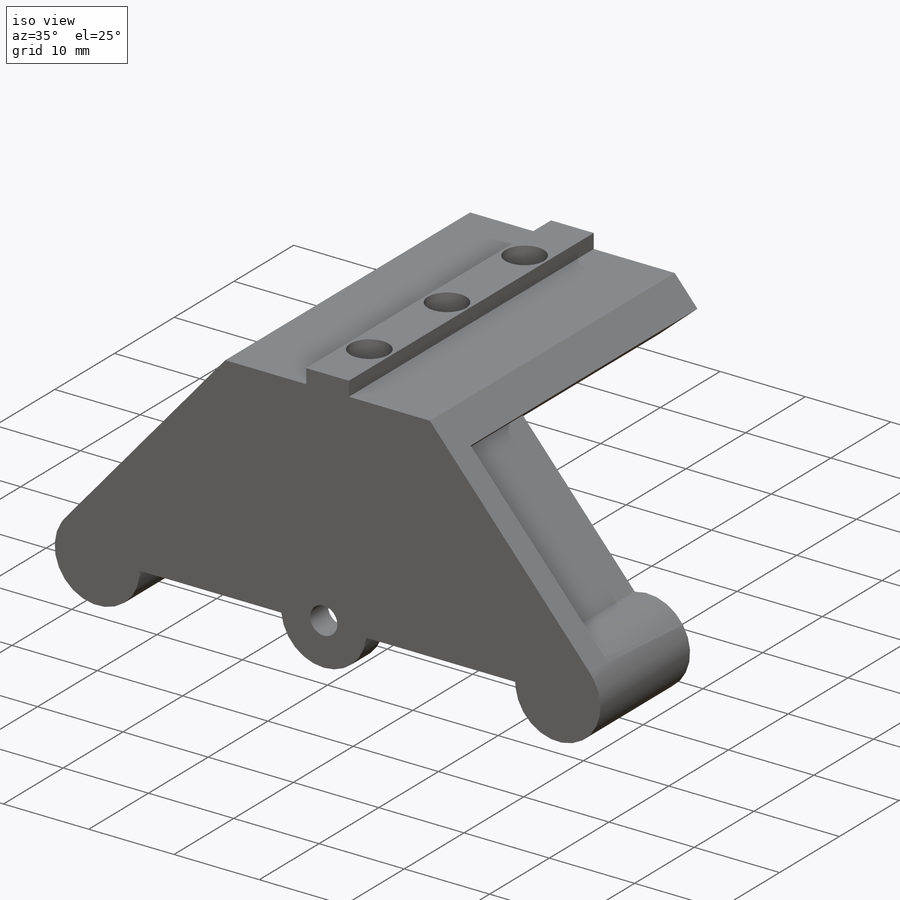
[diagram: iso view]
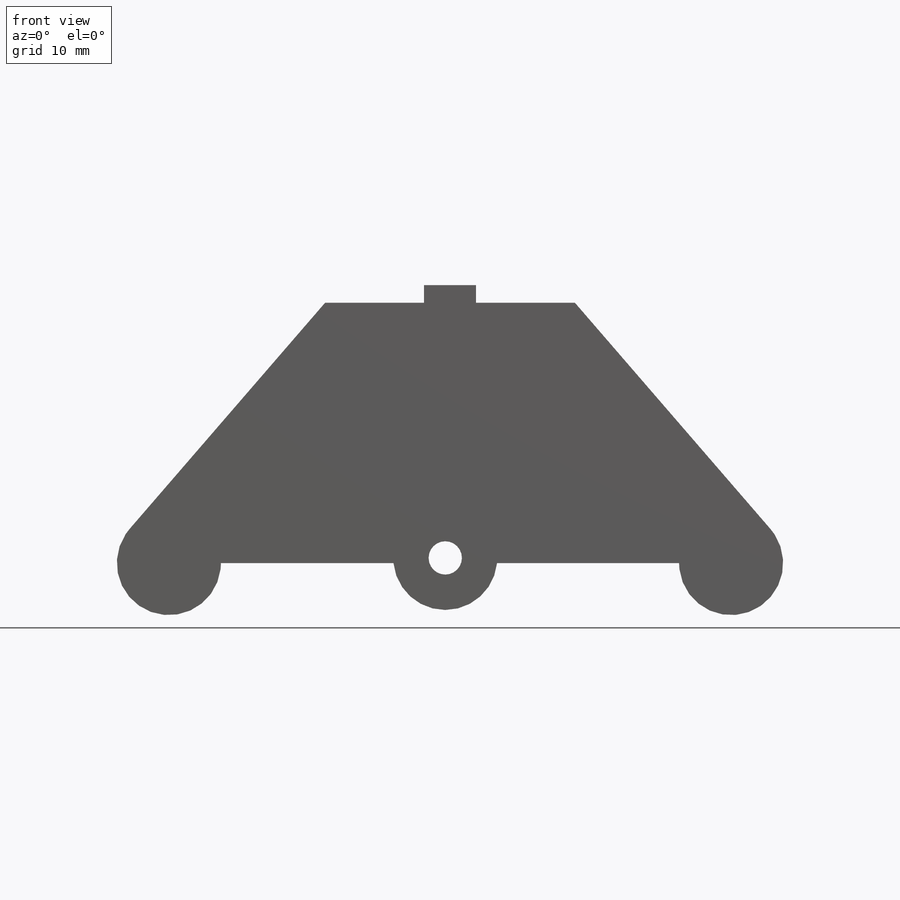
[diagram: front view]
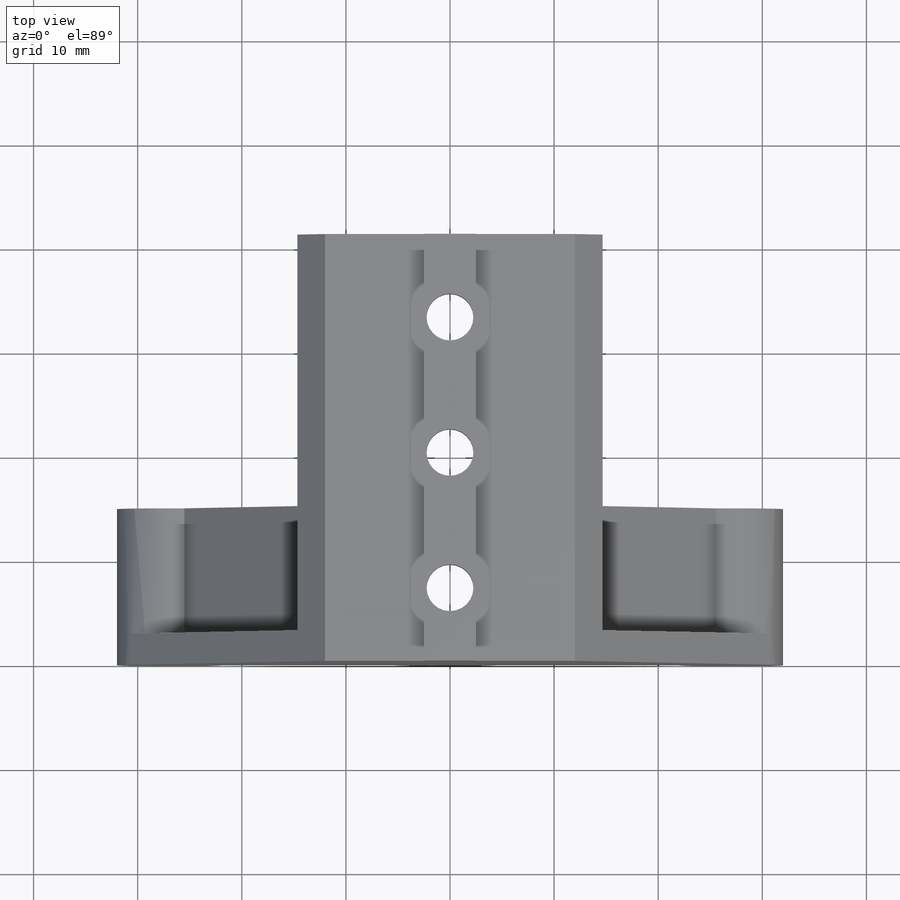
[diagram: top view]
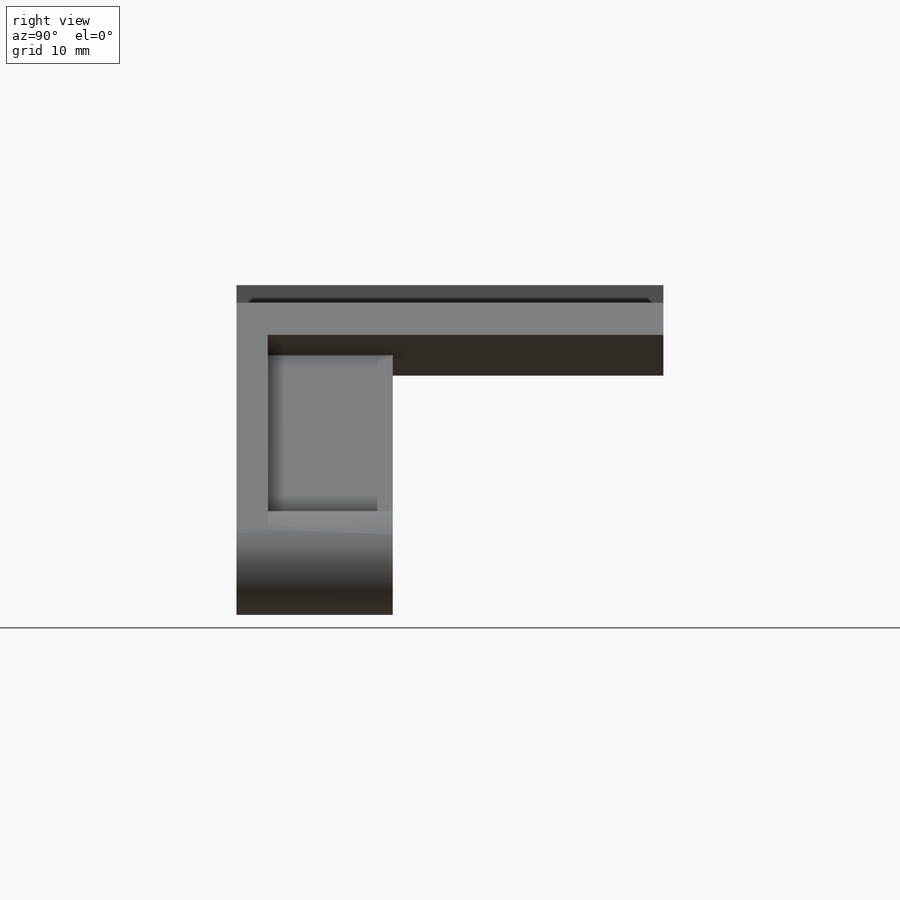
[diagram: right view]
SOLIDWORKS PART (.sldprt)
format: sldprt  version: not decoded by parser v0  size: 281,600 bytes
history: native  units: mm
features: sketch x8, extrude x5, cut_extrude x3, material x1, pattern_linear x1, plane x1 (+12 scaffold rows collapsed)
feature tree (31):
  scaffold x12  (default folders/planes/origin — collapsed)
  material  "ABS"
  sketch  "Sketch1"  dims[D1=10.0mm D4=3.0mm D2=25.0mm D3=24.0mm D5=54.0mm]
  extrude  "Boss-Extrude1"  Depth=3mm
  sketch  "Sketch2"  dims[D4=6.78mm D1=3.0mm D2=3.0mm D3=7.0mm]
  extrude  "Boss-Extrude2"  Depth=12mm
  sketch  "Sketch3"
  extrude  "Boss-Extrude3"  Depth=26mm
  sketch  "Sketch7"  dims[D1=5.0mm D2=1.7mm]
  extrude  "Boss-Extrude5"  [1 undecoded]
  sketch  "Sketch4"  dims[c1.D1=4.5mm c1.D2=7.0mm c1.D3=13.0mm c1.D4=13.0mm c2.D2=7.0mm]
  cut_extrude  "Cut-Extrude1"  Depth=26mm
  sketch  "Sketch8"  dims[D1=8.0mm]
  cut_extrude  "Cut-Extrude3"  Depth=4.5mm
  pattern_linear  "LPattern1"  Count1=3 Count2=1 Spacing1=13mm Spacing2=10mm
  plane  "Plane1"
  sketch  "Sketch5"  dims[c1.D2=10.0mm c1.D1=1.0mm c1.D3=22.5mm c2.D1=~0.45564mm c2.D3=~0.495332mm]
  extrude  "Boss-Extrude4"  Depth=3mm
  sketch  "Sketch6"  dims[D1=3.2mm]
  cut_extrude  "Cut-Extrude2"  Depth=3mm
decode coverage: 15 of 17 modeling features carry decoded parameters
note: ~ marks probable driven/reference dimensions
note: 1 parameter value undecoded
note: suppression state not decoded; provenance and decode notes live in map.json
